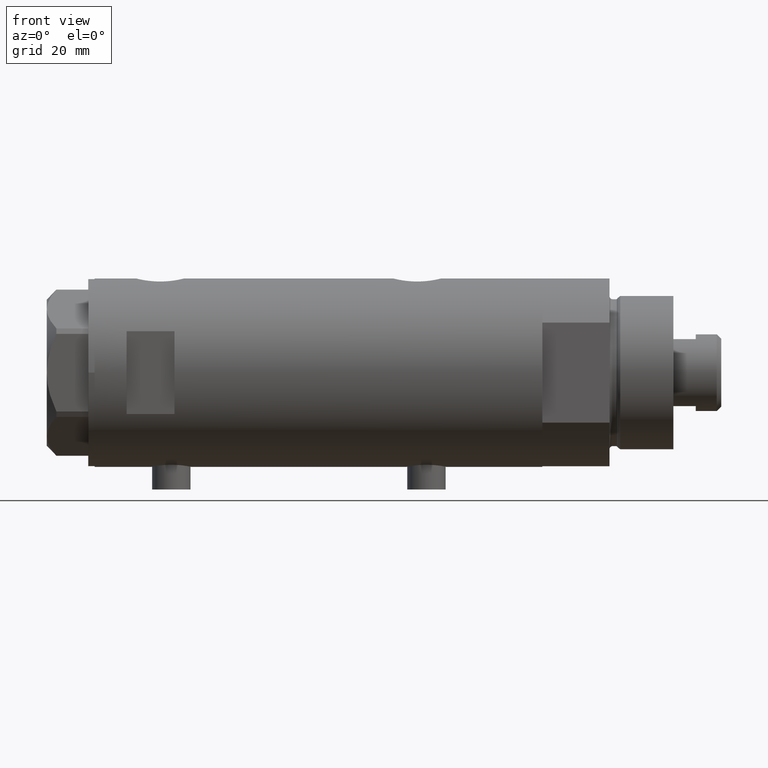
[diagram: clean part render]
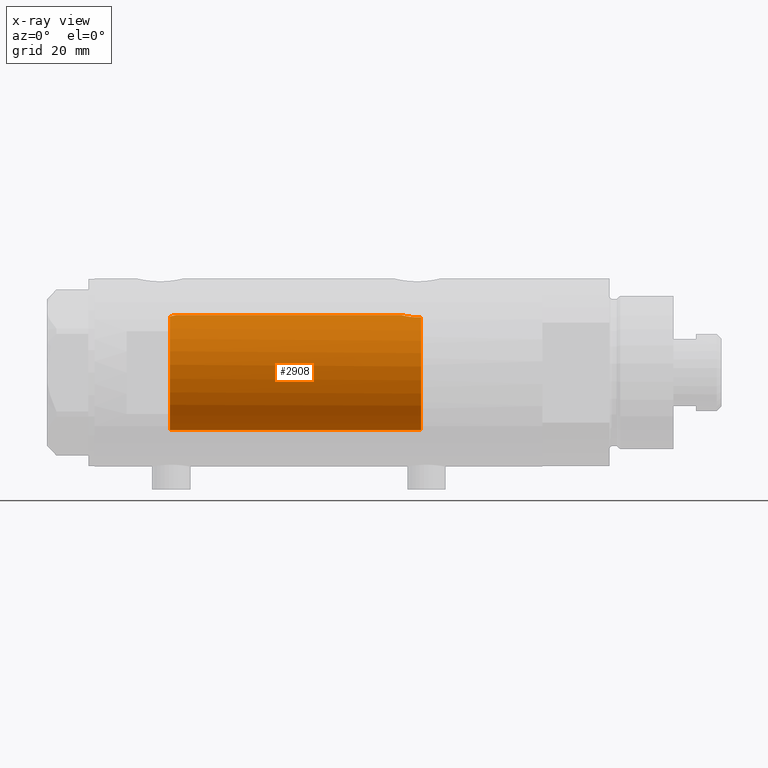
[diagram: x-ray — body ghosted, one internal face saturated and labeled with its STEP entity id]
A machine part, front view, then the same camera in x-ray: the body is ghosted and one INTERNAL B-rep face — a face not visible from any outside direction — is saturated and labeled: STEP entity #2908.
In plain terms, the highlighted cylindrical surface (partial cylindrical patch) has radius 18 mm, axis along (1, 0, -0).
Its self-contained STEP definition (entity closure, byte-faithful):
#193 = CARTESIAN_POINT ( 'NONE',  ( -18.00000000000000000, 0.000000000000000000, -32.09999999999998721 ) ) ;
#241 = CARTESIAN_POINT ( 'NONE',  ( 17.63693340989344449, -3.604419224588191639, 46.31212766824009464 ) ) ;
#243 = VERTEX_POINT ( 'NONE', #1586 ) ;
#279 = ORIENTED_EDGE ( 'NONE', *, *, #1742, .F. ) ;
#334 = AXIS2_PLACEMENT_3D ( 'NONE', #3662, #4436, #1294 ) ;
#341 = VERTEX_POINT ( 'NONE', #3588 ) ;
#522 = CARTESIAN_POINT ( 'NONE',  ( 17.78689333688353003, -2.776822659814079941, 45.58837617090290451 ) ) ;
#541 = VECTOR ( 'NONE', #1534, 1000.000000000000000 ) ;
#565 = CARTESIAN_POINT ( 'NONE',  ( 18.00000000000000000, 2.204364238465235033E-15, 70.09999999999999432 ) ) ;
#570 = CARTESIAN_POINT ( 'NONE',  ( 17.98842269988416120, -0.7385803848020523477, 44.77734794098787319 ) ) ;
#616 = CYLINDRICAL_SURFACE ( 'NONE', #334, 18.00000000000000000 ) ;
#648 = CARTESIAN_POINT ( 'NONE',  ( 17.94411621822183633, -1.462318180775793008, -26.24532018047458592 ) ) ;
#669 = CARTESIAN_POINT ( 'NONE',  ( 17.98578085412772865, -0.7388632979187818028, -26.08783263922209983 ) ) ;
#706 = ORIENTED_EDGE ( 'NONE', *, *, #721, .T. ) ;
#721 = EDGE_CURVE ( 'NONE', #341, #3861, #902, .T. ) ;
#793 = LINE ( 'NONE', #2114, #2706 ) ;
#826 = CARTESIAN_POINT ( 'NONE',  ( 17.33258131920084466, -4.856098292894135859, -31.37181853595666325 ) ) ;
#902 = LINE ( 'NONE', #565, #541 ) ;
#907 = CARTESIAN_POINT ( 'NONE',  ( 18.00000000000000000, 0.000000000000000000, 44.73499999999999233 ) ) ;
#934 = B_SPLINE_CURVE_WITH_KNOTS ( 'NONE', 3,
 ( #907, #2277, #570, #3303, #1259, #3328, #522, #2634, #241, #1022 ),
 .UNSPECIFIED., .F., .F.,
 ( 4, 2, 2, 2, 4 ),
 ( 2.959341624767055034E-19, 0.001102956581910075669, 0.002205913163820150905, 0.003308869745730224840, 0.004411826327640299208 ),
 .UNSPECIFIED. ) ;
#1022 = CARTESIAN_POINT ( 'NONE',  ( 17.58783030962034744, -3.829911878881814058, 46.59999999999999432 ) ) ;
#1083 = DIRECTION ( 'NONE',  ( 0.000000000000000000, 0.000000000000000000, -1.000000000000000000 ) ) ;
#1166 = CARTESIAN_POINT ( 'NONE',  ( 17.63516507807923261, -3.613050995810185739, -27.62150009659157490 ) ) ;
#1181 = DIRECTION ( 'NONE',  ( 1.000000000000000000, 0.000000000000000000, 0.000000000000000000 ) ) ;
#1249 = CARTESIAN_POINT ( 'NONE',  ( 17.99716838826709520, -0.3690012331666936984, -26.04544422515623125 ) ) ;
#1259 = CARTESIAN_POINT ( 'NONE',  ( 17.91197612045793264, -1.808534151376003374, 45.06883769349536095 ) ) ;
#1262 = CIRCLE ( 'NONE', #1557, 18.00000000000000000 ) ;
#1278 = CARTESIAN_POINT ( 'NONE',  ( 17.91207243579358277, -1.808254927071299534, -26.36838658940774494 ) ) ;
#1294 = DIRECTION ( 'NONE',  ( -1.000000000000000000, 0.000000000000000000, 0.000000000000000000 ) ) ;
#1314 = VERTEX_POINT ( 'NONE', #193 ) ;
#1322 = EDGE_CURVE ( 'NONE', #243, #2704, #3934, .T. ) ;
#1389 = DIRECTION ( 'NONE',  ( -1.000000000000000000, 0.000000000000000000, 0.000000000000000000 ) ) ;
#1514 = CARTESIAN_POINT ( 'NONE',  ( 0.000000000000000000, 0.000000000000000000, 46.59999999999999432 ) ) ;
#1515 = CARTESIAN_POINT ( 'NONE',  ( 17.53680980608542939, -4.063678955652870073, -28.20014584461345919 ) ) ;
#1534 = DIRECTION ( 'NONE',  ( -0.000000000000000000, -0.000000000000000000, -1.000000000000000000 ) ) ;
#1557 = AXIS2_PLACEMENT_3D ( 'NONE', #3825, #1083, #1389 ) ;
#1586 = CARTESIAN_POINT ( 'NONE',  ( -18.00000000000000000, 0.000000000000000000, 46.59999999999999432 ) ) ;
#1598 = CARTESIAN_POINT ( 'NONE',  ( 17.37991340314490785, -4.684530256828848493, -29.53638461192320364 ) ) ;
#1742 = EDGE_CURVE ( 'NONE', #341, #2704, #934, .T. ) ;
#1776 = CARTESIAN_POINT ( 'NONE',  ( 17.58783030962034744, -3.829911878881814058, 46.59999999999999432 ) ) ;
#1842 = CARTESIAN_POINT ( 'NONE',  ( 17.37157951943346035, -4.714681855650494136, -32.09999999999999432 ) ) ;
#1887 = EDGE_CURVE ( 'NONE', #243, #1314, #793, .T. ) ;
#1927 = CARTESIAN_POINT ( 'NONE',  ( 18.00000000000000000, 5.958021437579254357E-16, -26.03499999999998948 ) ) ;
#1935 = CARTESIAN_POINT ( 'NONE',  ( 17.32819690210316210, -4.871720223791780491, -30.63420793424217692 ) ) ;
#1996 = CARTESIAN_POINT ( 'NONE',  ( 18.00000000000000000, -0.1843597763241284493, -26.03499999999998948 ) ) ;
#2114 = CARTESIAN_POINT ( 'NONE',  ( -18.00000000000000000, 0.000000000000000000, 70.09999999999999432 ) ) ;
#2182 = ORIENTED_EDGE ( 'NONE', *, *, #1887, .F. ) ;
#2202 = CARTESIAN_POINT ( 'NONE',  ( 17.83055549281851881, -2.468946622824476300, -26.70402443991356378 ) ) ;
#2277 = CARTESIAN_POINT ( 'NONE',  ( 18.00000000000000355, -0.3730735969061054202, 44.73499999999999233 ) ) ;
#2487 = EDGE_CURVE ( 'NONE', #4045, #3861, #3835, .T. ) ;
#2512 = CARTESIAN_POINT ( 'NONE',  ( 17.68752450041759161, -3.351772203450734899, -27.35493447381010768 ) ) ;
#2579 = DIRECTION ( 'NONE',  ( 0.000000000000000000, 0.000000000000000000, 1.000000000000000000 ) ) ;
#2634 = CARTESIAN_POINT ( 'NONE',  ( 17.68806959355790909, -3.349106256179507746, 46.05213344176306833 ) ) ;
#2663 = CARTESIAN_POINT ( 'NONE',  ( 17.37157951943346035, -4.714681855650494136, -32.09999999999999432 ) ) ;
#2704 = VERTEX_POINT ( 'NONE', #1776 ) ;
#2706 = VECTOR ( 'NONE', #2864, 1000.000000000000000 ) ;
#2736 = EDGE_CURVE ( 'NONE', #4045, #1314, #1262, .T. ) ;
#2756 = ORIENTED_EDGE ( 'NONE', *, *, #1322, .T. ) ;
#2763 = EDGE_LOOP ( 'NONE', ( #279, #706, #2937, #4387, #2182, #2756 ) ) ;
#2864 = DIRECTION ( 'NONE',  ( -0.000000000000000000, -0.000000000000000000, -1.000000000000000000 ) ) ;
#2877 = CARTESIAN_POINT ( 'NONE',  ( 17.76113839466168542, -2.926207082530025261, -27.00911996042637142 ) ) ;
#2908 = ADVANCED_FACE ( 'NONE', ( #4066 ), #616, .F. ) ;
#2937 = ORIENTED_EDGE ( 'NONE', *, *, #2487, .F. ) ;
#3034 = CARTESIAN_POINT ( 'NONE',  ( 18.00000000000000000, 5.958021437579254357E-16, -26.03499999999998948 ) ) ;
#3202 = CARTESIAN_POINT ( 'NONE',  ( 17.41145422212636618, -4.568075757751901556, -29.18573299053985792 ) ) ;
#3297 = CARTESIAN_POINT ( 'NONE',  ( 17.33821808943282861, -4.836569767017237176, -30.25823404381377557 ) ) ;
#3303 = CARTESIAN_POINT ( 'NONE',  ( 17.94467453319815320, -1.455166008437401626, 44.94318072553844701 ) ) ;
#3328 = CARTESIAN_POINT ( 'NONE',  ( 17.83332390923721178, -2.466220319593706911, 45.39048875048363385 ) ) ;
#3570 = AXIS2_PLACEMENT_3D ( 'NONE', #1514, #2579, #1181 ) ;
#3588 = CARTESIAN_POINT ( 'NONE',  ( 18.00000000000000000, 0.000000000000000000, 44.73499999999999233 ) ) ;
#3662 = CARTESIAN_POINT ( 'NONE',  ( 0.000000000000000000, 0.000000000000000000, 70.09999999999999432 ) ) ;
#3711 = CARTESIAN_POINT ( 'NONE',  ( 17.97721305204033726, -0.9231636963562669385, -26.11982822371819424 ) ) ;
#3754 = CARTESIAN_POINT ( 'NONE',  ( 17.85233710017094566, -2.306965814323742148, -26.61276266371617893 ) ) ;
#3825 = CARTESIAN_POINT ( 'NONE',  ( 0.000000000000000000, 0.000000000000000000, -32.09999999999998721 ) ) ;
#3835 = B_SPLINE_CURVE_WITH_KNOTS ( 'NONE', 3,
 ( #1842, #4326, #826, #1935, #3297, #1598, #3202, #4346, #1515, #1166, #2512, #2877, #4257, #2202, #3754, #1278, #648, #3711, #669, #1249, #1996, #3034 ),
 .UNSPECIFIED., .F., .F.,
 ( 4, 2, 2, 2, 2, 2, 2, 2, 2, 2, 4 ),
 ( 0.006434066725458731720, 0.007540005695425726351, 0.008645944665392712308, 0.009751883635359694796, 0.01085782260532668075, 0.01196376157529366671, 0.01251673106027715796, 0.01306970054526064920, 0.01417563951522762648, 0.01472860900021111773, 0.01528157848519460724 ),
 .UNSPECIFIED. ) ;
#3861 = VERTEX_POINT ( 'NONE', #1927 ) ;
#3934 = CIRCLE ( 'NONE', #3570, 18.00000000000000000 ) ;
#4045 = VERTEX_POINT ( 'NONE', #2663 ) ;
#4066 = FACE_OUTER_BOUND ( 'NONE', #2763, .T. ) ;
#4257 = CARTESIAN_POINT ( 'NONE',  ( 17.78501549309440932, -2.778062367771705343, -26.90196575702888282 ) ) ;
#4326 = CARTESIAN_POINT ( 'NONE',  ( 17.34665145232711581, -4.806531086046565093, -31.73913341666349197 ) ) ;
#4346 = CARTESIAN_POINT ( 'NONE',  ( 17.49057517990651434, -4.255095079290339477, -28.51249222525177984 ) ) ;
#4387 = ORIENTED_EDGE ( 'NONE', *, *, #2736, .T. ) ;
#4436 = DIRECTION ( 'NONE',  ( -0.000000000000000000, -0.000000000000000000, -1.000000000000000000 ) ) ;